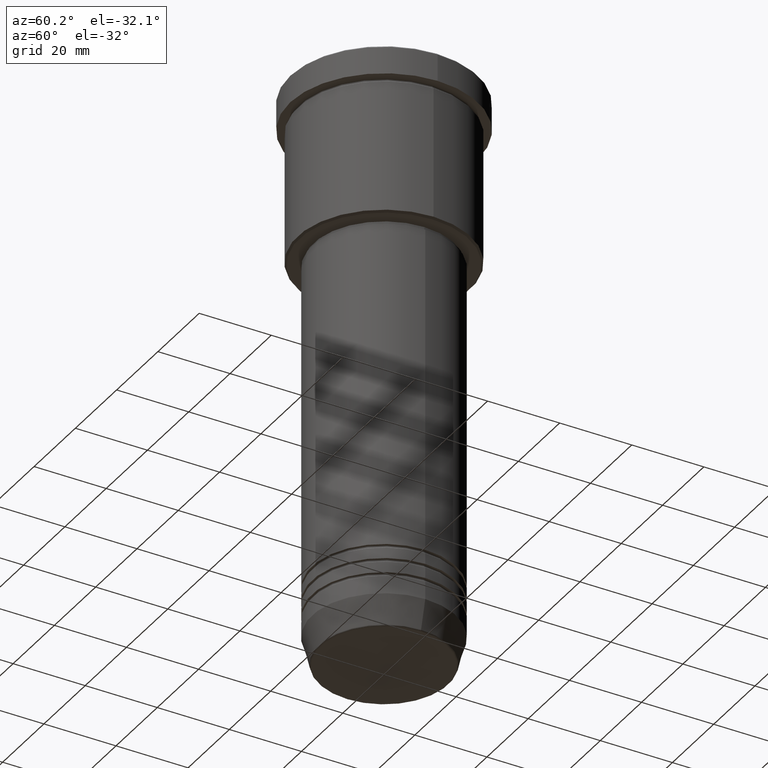
[diagram: clean part render]
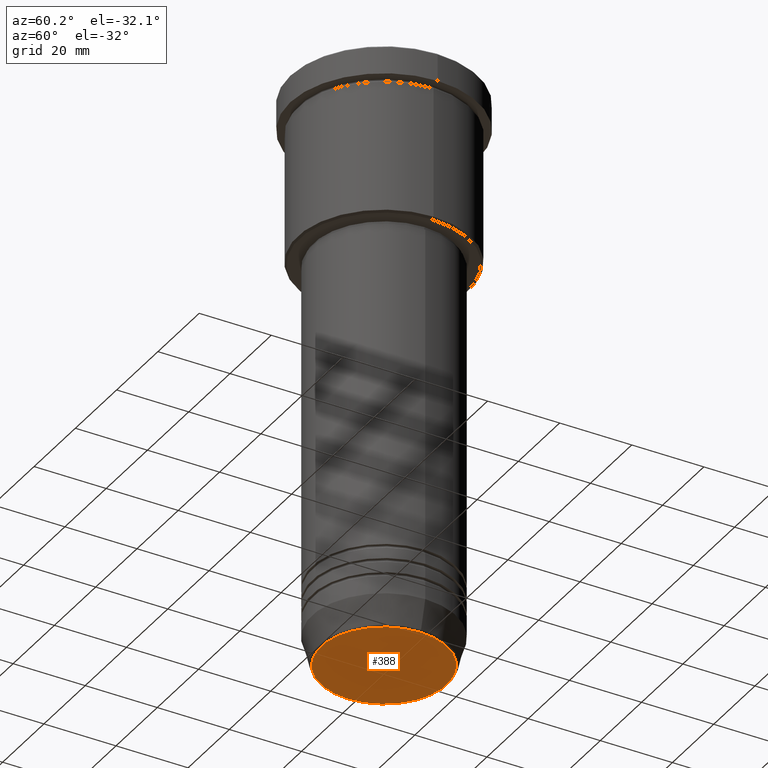
[diagram: same view with one face highlighted and labeled with its STEP entity id]
A machine part, auxiliary view. The second image highlights one B-rep face of the part: STEP entity #388.
In plain terms, the highlighted planar face has unit normal (0, -0, 1).
Its self-contained STEP definition (entity closure, byte-faithful):
#21 = ORIENTED_EDGE ( 'NONE', *, *, #264, .T. ) ;
#31 = VERTEX_POINT ( 'NONE', #975 ) ;
#127 = CARTESIAN_POINT ( 'NONE',  ( 0.000000000000000000, 0.000000000000000000, -160.0000000000000284 ) ) ;
#203 = ORIENTED_EDGE ( 'NONE', *, *, #481, .T. ) ;
#211 = EDGE_LOOP ( 'NONE', ( #203, #21 ) ) ;
#241 = CARTESIAN_POINT ( 'NONE',  ( 17.47274296656154036, 0.000000000000000000, -160.0000000000000284 ) ) ;
#264 = EDGE_CURVE ( 'NONE', #31, #944, #974, .T. ) ;
#352 = AXIS2_PLACEMENT_3D ( 'NONE', #366, #824, #647 ) ;
#366 = CARTESIAN_POINT ( 'NONE',  ( 0.000000000000000000, 0.000000000000000000, -160.0000000000000284 ) ) ;
#376 = AXIS2_PLACEMENT_3D ( 'NONE', #895, #453, #811 ) ;
#388 = ADVANCED_FACE ( 'NONE', ( #390 ), #748, .F. ) ;
#390 = FACE_OUTER_BOUND ( 'NONE', #211, .T. ) ;
#453 = DIRECTION ( 'NONE',  ( 0.000000000000000000, 0.000000000000000000, -1.000000000000000000 ) ) ;
#481 = EDGE_CURVE ( 'NONE', #944, #31, #1088, .T. ) ;
#486 = AXIS2_PLACEMENT_3D ( 'NONE', #127, #949, #755 ) ;
#647 = DIRECTION ( 'NONE',  ( 1.000000000000000000, 0.000000000000000000, 0.000000000000000000 ) ) ;
#748 = PLANE ( 'NONE',  #352 ) ;
#755 = DIRECTION ( 'NONE',  ( 1.000000000000000000, 0.000000000000000000, 0.000000000000000000 ) ) ;
#811 = DIRECTION ( 'NONE',  ( 1.000000000000000000, 0.000000000000000000, 0.000000000000000000 ) ) ;
#824 = DIRECTION ( 'NONE',  ( 0.000000000000000000, -0.000000000000000000, 1.000000000000000000 ) ) ;
#895 = CARTESIAN_POINT ( 'NONE',  ( 0.000000000000000000, 0.000000000000000000, -160.0000000000000284 ) ) ;
#944 = VERTEX_POINT ( 'NONE', #241 ) ;
#949 = DIRECTION ( 'NONE',  ( 0.000000000000000000, 0.000000000000000000, -1.000000000000000000 ) ) ;
#974 = CIRCLE ( 'NONE', #376, 17.47274296656154036 ) ;
#975 = CARTESIAN_POINT ( 'NONE',  ( -17.47274296656154036, 2.169366823916868503E-15, -160.0000000000000284 ) ) ;
#1088 = CIRCLE ( 'NONE', #486, 17.47274296656154036 ) ;